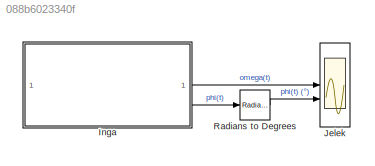
MODEL slx_088b6023340f
KIND model
CONFIG AbsTol = auto
CONFIG EnableMultiTasking = off
CONFIG FixedStep = auto
CONFIG MaxStep = 10e-3
CONFIG MinStep = auto
CONFIG RelTol = 1e-3
CONFIG SampleTimeConstraint = Unconstrained
CONFIG SolverName = VariableStepAuto
CONFIG StartTime = 0.0
CONFIG StopTime = 50
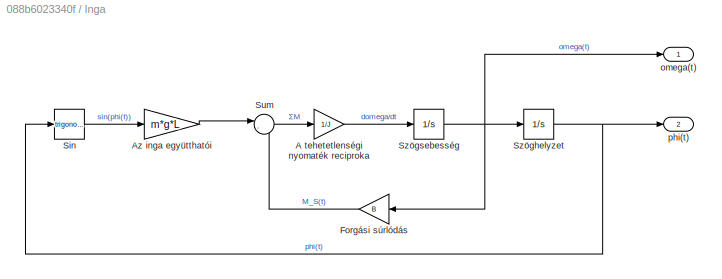
BLOCK [SubSystem] Inga
BLOCK [Gain] Inga/A tehetetlenségi nyomaték reciproka
  Gain = 1/J
BLOCK [Gain] Inga/Az inga együtthatói
  Gain = m*g*L
BLOCK [Gain] Inga/Forgási súrlódás
  Gain = B
BLOCK [Trigonometry] Inga/Sin
BLOCK [Sum] Inga/Sum
  Inputs = |--
BLOCK [Integrator] Inga/Szöghelyzet
  InitialCondition = phi_0
BLOCK [Integrator] Inga/Szögsebesség
  InitialCondition = omega_0
BLOCK [Outport] Inga/omega(t)
BLOCK [Outport] Inga/phi(t)
  Port = 2
BLOCK [Scope] Jelek
  ActiveDisplayYMaximum = 2.6012131657726636
  ActiveDisplayYMinimum = -2.8222054169075976
  Floating = off
  GraphicalSettings = {"Style":{"BackgroundColor":[0.12941176470588237,0.12941176470588237,0.12941176470588237],"AxesColor":[0.07058823529411765,0.07058823529411765,0.07058823529411765],"LabelsColor":[0.8509803921568627,0.8509803921568627,0.8509803921568627],"PreserveColors":false,"Visible":[true,true],"LineStyle":["-","-"],"LineWidth":[3,3],"BarWidth":[0.9,0.9],"LineColor":["auto","auto"],"LineFaceAlpha":[1,1],"LineEd...<+2470ch>
  LayoutDimensionsString = [2,1]
  MultipleDisplayCache = [{"MaxYLimMag":2.8222054169075976,"MaxYLimReal":2.6012131657726636,"MinYLimMag":0,"MinYLimReal":-2.8222054169075976,"PlotAsMagnitudePhase":false,"ShowGrid":true,"ShowLegend":true,"Title":"%<SignalLabel>","YLabel":""},{"MaxYLimMag":55.6780863540713,"MaxYLimReal":55.6780863540713,"MinYLimMag":0,"MinYLimReal":-51.102777186641696,"PlotAsMagnitudePhase":false,"ShowGrid":true,"ShowLegend":true,"Title":"...<+29ch>
  NumInputPorts = 2
  ScopeFrameLocation = window
  ShowLegend = on
  Visible = on
  WasSavedAsWebScope = on
  WindowPosition = [37.000000,183.000000,755.000000,724.000000,]
BLOCK [Reference] Radians to Degrees  REF=simulink_extras/Transformations/Radians
to Degrees
  SourceBlock = simulink_extras/Transformations/Radians\nto Degrees
  SourceType = RadiansToDegrees
LINE Inga/A tehetetlenségi nyomaték reciproka:1 -> Inga/Szögsebesség:1
LINE Inga/Az inga együtthatói:1 -> Inga/Sum:1
LINE Inga/Forgási súrlódás:1 -> Inga/Sum:2
LINE Inga/Sin:1 -> Inga/Az inga együtthatói:1
LINE Inga/Sum:1 -> Inga/A tehetetlenségi nyomaték reciproka:1
NET Inga/Szöghelyzet:1 -> Inga/Sin:1, Inga/phi(t):1
NET Inga/Szögsebesség:1 -> Inga/Forgási súrlódás:1, Inga/Szöghelyzet:1, Inga/omega(t):1
LINE Inga:1 -> Jelek:1
LINE Inga:2 -> Radians to Degrees:1
LINE Radians to Degrees:1 -> Jelek:2
note: NET lines group one-source signal fan-out (src -> all destinations, sorted); 1:1 wires keep LINE
